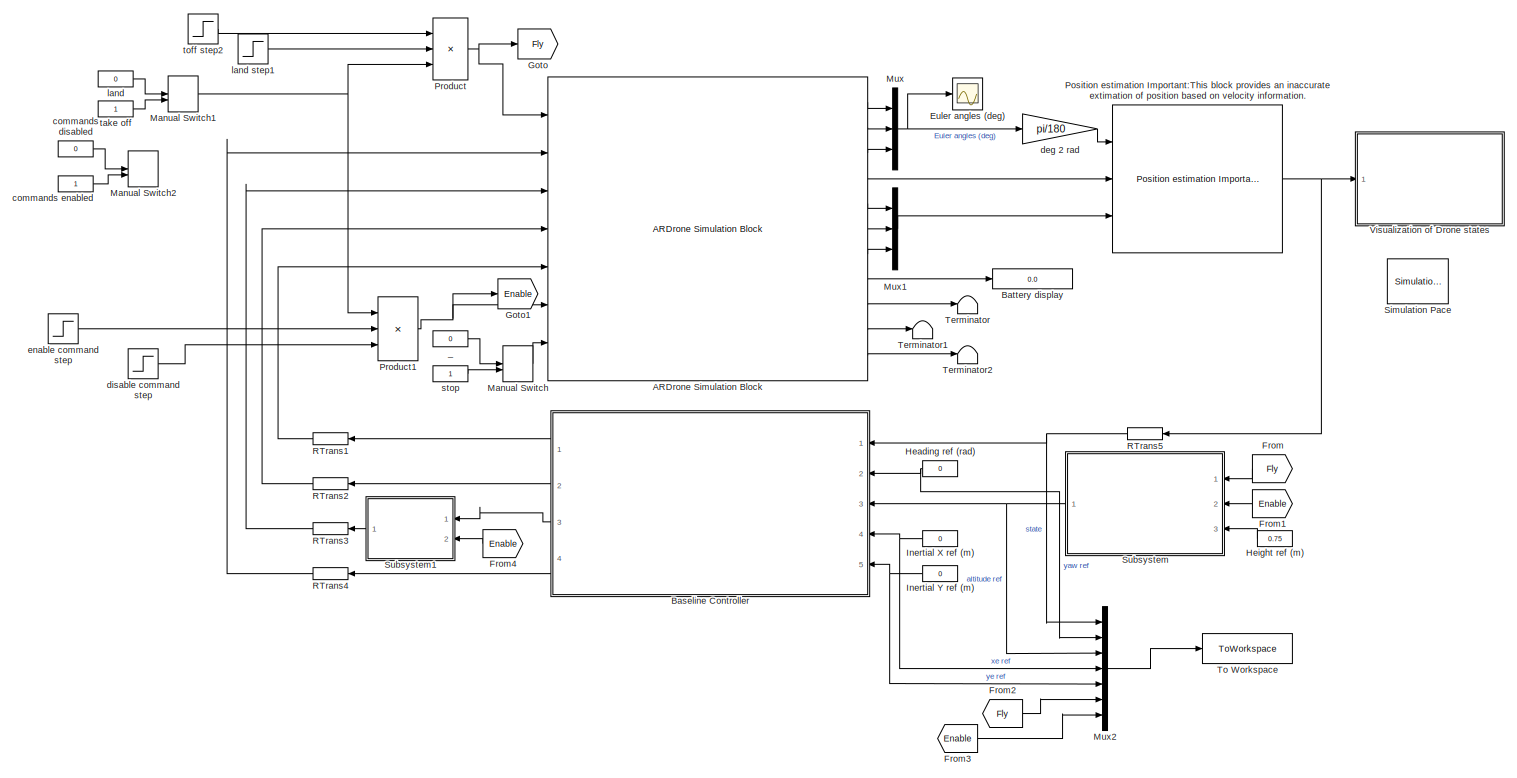
[diagram: root canvas - part 1/1, most of the canvas]
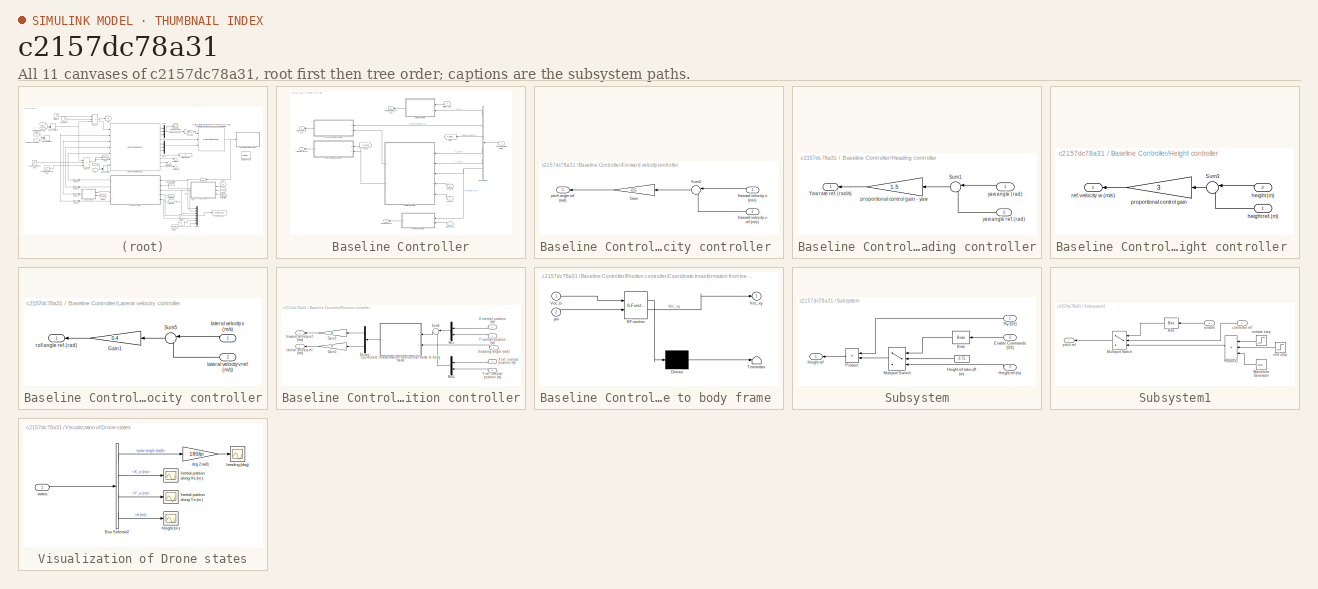
[diagram: thumbnail index - all 11 canvases of the model, root first then tree order]
MODEL slx_c2157dc78a31
KIND model
CONFIG AbsTol = auto
CONFIG EnableMultiTasking = on
CONFIG FixedStep = simDT
CONFIG MaxStep = auto
CONFIG MinStep = auto
CONFIG RelTol = 1e-3
CONFIG SampleTimeConstraint = Unconstrained
CONFIG Solver = ode1
CONFIG SolverName = ode1
CONFIG StartTime = 0.0
CONFIG StopTime = 100
BLOCK [Reference] ARDrone Simulation Block  REF=ARBlocks/ARDrone Simulation Block
  Ports = [7, 11]
  SourceBlock = ARBlocks/ARDrone Simulation Block
  SourceType = SubSystem
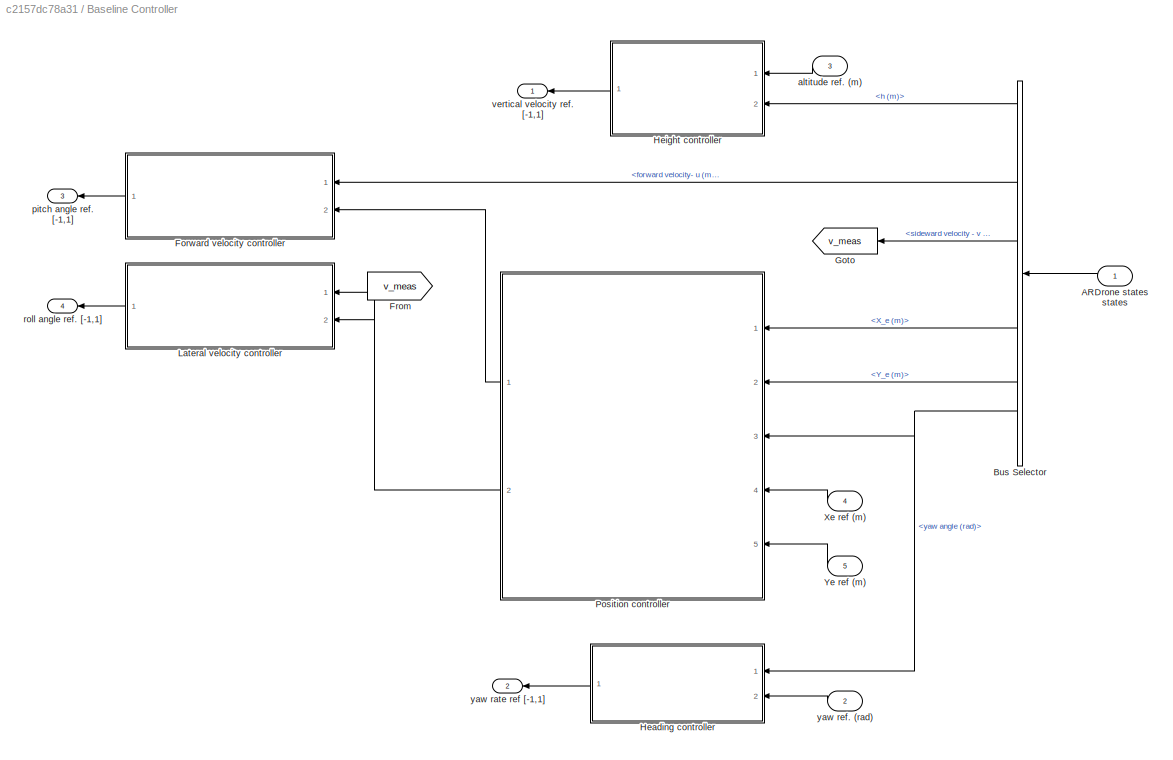
BLOCK [SubSystem] Baseline Controller
  AncestorBlock = ARBlocks/Baseline Controller
  Ports = [5, 4]
  RequestExecContextInheritance = off
BLOCK [Inport] Baseline Controller/ARDrone states  states 
BLOCK [BusSelector] Baseline Controller/Bus Selector
  NameLocation = top
  OutputSignals = h (m),forward velocity- u (m/s),sideward velocity - v (m/s),X_e (m),Y_e (m),yaw angle (rad)
  Ports = [1, 6]
BLOCK [SubSystem] Baseline Controller/Forward velocity controller 
  NameLocation = top
  Ports = [2, 1]
  RequestExecContextInheritance = off
BLOCK [Gain] Baseline Controller/Forward velocity controller /Gain
  Gain = -0.5
  NameLocation = top
BLOCK [Sum] Baseline Controller/Forward velocity controller /Sum2
  Inputs = |-+
  NameLocation = top
  Ports = [2, 1]
BLOCK [Inport] Baseline Controller/Forward velocity controller /forward velocity u (m//s)
BLOCK [Inport] Baseline Controller/Forward velocity controller /forward velocity u ref (m//s)
  Port = 2
BLOCK [Outport] Baseline Controller/Forward velocity controller /pitch angle ref. (rad)
  VectorParamsAs1DForOutWhenUnconnected = off
BLOCK [From] Baseline Controller/From
  GotoTag = v_meas
  NameLocation = top
BLOCK [Goto] Baseline Controller/Goto
  GotoTag = v_meas
  NameLocation = top
BLOCK [SubSystem] Baseline Controller/Heading controller
  NameLocation = top
  Ports = [2, 1]
  RequestExecContextInheritance = off
BLOCK [Sum] Baseline Controller/Heading controller/Sum1
  Inputs = |-+
  NameLocation = top
  Ports = [2, 1]
BLOCK [Outport] Baseline Controller/Heading controller/Yaw rate ref. (rad//s)
  VectorParamsAs1DForOutWhenUnconnected = off
BLOCK [Gain] Baseline Controller/Heading controller/proportional control gain - yaw
  Gain = 1.5
  NameLocation = top
BLOCK [Inport] Baseline Controller/Heading controller/yaw angle (rad)
BLOCK [Inport] Baseline Controller/Heading controller/yaw angle ref. (rad)
  Port = 2
BLOCK [SubSystem] Baseline Controller/Height controller 
  NameLocation = top
  Ports = [2, 1]
  RequestExecContextInheritance = off
BLOCK [Sum] Baseline Controller/Height controller /Sum3
  Inputs = |-+
  NameLocation = top
  Ports = [2, 1]
BLOCK [Inport] Baseline Controller/Height controller /height (m)
  Port = 2
BLOCK [Inport] Baseline Controller/Height controller /height ref. (m)
BLOCK [Gain] Baseline Controller/Height controller /proportional control gain
  Gain = 3
  NameLocation = top
BLOCK [Outport] Baseline Controller/Height controller /ref. velocity w (m//s)
  VectorParamsAs1DForOutWhenUnconnected = off
BLOCK [SubSystem] Baseline Controller/Lateral velocity controller
  Ports = [2, 1]
  RequestExecContextInheritance = off
BLOCK [Gain] Baseline Controller/Lateral velocity controller/Gain1
  Gain = 0.4
  NameLocation = top
BLOCK [Sum] Baseline Controller/Lateral velocity controller/Sum5
  Inputs = |-+
  NameLocation = top
  Ports = [2, 1]
BLOCK [Inport] Baseline Controller/Lateral velocity controller/lateral velocity v (m//s)
BLOCK [Inport] Baseline Controller/Lateral velocity controller/lateral velocity v ref. (m//s)
  Port = 2
BLOCK [Outport] Baseline Controller/Lateral velocity controller/roll angle ref. (rad)
  VectorParamsAs1DForOutWhenUnconnected = off
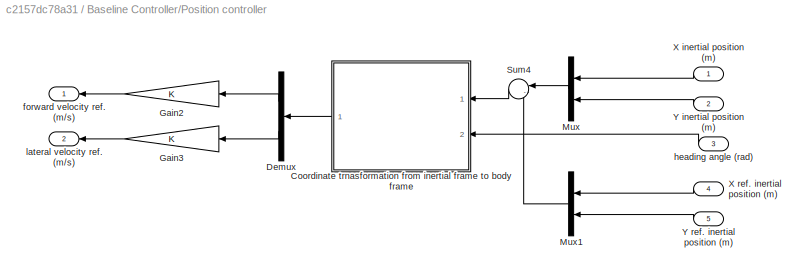
BLOCK [SubSystem] Baseline Controller/Position controller
  NameLocation = top
  Ports = [5, 2]
  RequestExecContextInheritance = off
BLOCK [SubSystem] Baseline Controller/Position controller/Coordinate trnasformation from inertial frame to body frame 
  ErrorFcn = Stateflow.Translate.translate
  NameLocation = top
  PermitHierarchicalResolution = ExplicitOnly
  Ports = [2, 1]
  RequestExecContextInheritance = off
  SFBlockType = MATLAB Function
  TreatAsAtomicUnit = on
BLOCK [Demux] Baseline Controller/Position controller/Coordinate trnasformation from inertial frame to body frame / Demux 
  Outputs = 1
  Ports = [1, 1]
BLOCK [S-Function] Baseline Controller/Position controller/Coordinate trnasformation from inertial frame to body frame / SFunction 
  EnableBusSupport = on
  FunctionName = sf_sfun
  PortCounts = [2 2]
  Ports = [2, 2]
  SFcnIsStateOwnerBlock = off
  SFunctionDeploymentMode = off
  Tag = Stateflow S-Function 7
BLOCK [Terminator] Baseline Controller/Position controller/Coordinate trnasformation from inertial frame to body frame / Terminator 
BLOCK [Inport] Baseline Controller/Position controller/Coordinate trnasformation from inertial frame to body frame /Vec_b
BLOCK [Outport] Baseline Controller/Position controller/Coordinate trnasformation from inertial frame to body frame /Vec_xy
  VectorParamsAs1DForOutWhenUnconnected = off
BLOCK [Inport] Baseline Controller/Position controller/Coordinate trnasformation from inertial frame to body frame /psi
  Port = 2
BLOCK [Demux] Baseline Controller/Position controller/Demux
  NameLocation = top
  Outputs = 2
  Ports = [1, 2]
BLOCK [Gain] Baseline Controller/Position controller/Gain2
  NameLocation = top
BLOCK [Gain] Baseline Controller/Position controller/Gain3
  NameLocation = top
BLOCK [Mux] Baseline Controller/Position controller/Mux
  DisplayOption = bar
  Inputs = 2
  NameLocation = top
  Ports = [2, 1]
BLOCK [Mux] Baseline Controller/Position controller/Mux1
  DisplayOption = bar
  Inputs = 2
  NameLocation = top
  Ports = [2, 1]
BLOCK [Sum] Baseline Controller/Position controller/Sum4
  Inputs = |-+
  NameLocation = top
  Ports = [2, 1]
BLOCK [Inport] Baseline Controller/Position controller/X inertial position (m)
BLOCK [Inport] Baseline Controller/Position controller/X ref. inertial position (m)
  Port = 4
BLOCK [Inport] Baseline Controller/Position controller/Y inertial position (m)
  Port = 2
BLOCK [Inport] Baseline Controller/Position controller/Y ref. inertial position (m)
  Port = 5
BLOCK [Outport] Baseline Controller/Position controller/forward velocity ref. (m//s)
  VectorParamsAs1DForOutWhenUnconnected = off
BLOCK [Inport] Baseline Controller/Position controller/heading angle (rad)
  Port = 3
BLOCK [Outport] Baseline Controller/Position controller/lateral velocity ref. (m//s)
  Port = 2
  VectorParamsAs1DForOutWhenUnconnected = off
BLOCK [Inport] Baseline Controller/Xe ref (m)
  Port = 4
BLOCK [Inport] Baseline Controller/Ye ref (m)
  Port = 5
BLOCK [Inport] Baseline Controller/altitude ref. (m)
  Port = 3
BLOCK [Outport] Baseline Controller/pitch angle ref. [-1,1]
  Port = 3
  VectorParamsAs1DForOutWhenUnconnected = off
BLOCK [Outport] Baseline Controller/roll angle ref. [-1,1]
  Port = 4
  VectorParamsAs1DForOutWhenUnconnected = off
BLOCK [Outport] Baseline Controller/vertical velocity ref. [-1,1]
  VectorParamsAs1DForOutWhenUnconnected = off
BLOCK [Outport] Baseline Controller/yaw rate ref [-1,1]
  Port = 2
  VectorParamsAs1DForOutWhenUnconnected = off
BLOCK [Inport] Baseline Controller/yaw ref. (rad)
  Port = 2
BLOCK [Display] Battery display
  Decimation = 1
  Ports = [1]
BLOCK [Scope] Euler angles (deg)
  Floating = off
  NumInputPorts = 1
  Ports = [1]
  ScopeSpecificationString = Simulink.scopes.TimeScopeBlockCfg('CurrentConfiguration', extmgr.ConfigurationSet(extmgr.Configuration('Core','General UI',true),extmgr.Configuration('Core','Source UI',true),extmgr.Configuration('Sources','WiredSimulink',true,'DataLoggingSaveFormat','StructureWithTime','DataLoggingMaxPoints','500000','DataLoggingLimitDataPoints',true,'DataLoggingDecimation','1','DataLoggingDecimateData',true),ext...<+1774ch>
BLOCK [From] From
  GotoTag = Fly
  NameLocation = top
BLOCK [From] From1
  GotoTag = Enable
  NameLocation = top
BLOCK [From] From2
  GotoTag = Fly
BLOCK [From] From3
  GotoTag = Enable
BLOCK [From] From4
  GotoTag = Enable
  NameLocation = top
BLOCK [Goto] Goto
  GotoTag = Fly
BLOCK [Goto] Goto1
  GotoTag = Enable
BLOCK [Constant] Heading ref (rad)
  NameLocation = top
  SampleTime = FMS.Ts
  Value = 0
BLOCK [Constant] Height ref (m)
  NameLocation = top
  SampleTime = FMS.Ts
  Value = 0.75
BLOCK [Constant] Inertial X ref (m)
  NameLocation = top
  SampleTime = FMS.Ts
  Value = 0
BLOCK [Constant] Inertial Y ref (m)
  NameLocation = top
  SampleTime = FMS.Ts
  Value = 0
BLOCK [ManualSwitch] Manual Switch
BLOCK [ManualSwitch] Manual Switch1
  CurrentSetting = 0
BLOCK [ManualSwitch] Manual Switch2
  CurrentSetting = 0
  NameLocation = top
BLOCK [Mux] Mux
  DisplayOption = bar
  Inputs = 3
  Ports = [3, 1]
BLOCK [Mux] Mux1
  DisplayOption = bar
  Inputs = 3
  Ports = [3, 1]
BLOCK [Mux] Mux2
  DisplayOption = bar
  Inputs = 7
  Ports = [7, 1]
BLOCK [Reference] Position estimation Important:This block provides an inaccurate extimation of position based on  velocity information.   REF=ARBlocks/Position estimation
Important:This block provides an 
inaccurate extimation of position 
based on  velocity information. 
  Ports = [3, 1]
  SourceBlock = ARBlocks/Position estimation\nImportant:This block provides an \ninaccurate extimation of position \nbased on  velocity information.
  SourceType = SubSystem
BLOCK [Product] Product
  Inputs = 3
  Ports = [3, 1]
BLOCK [Product] Product1
  Inputs = 3
  Ports = [3, 1]
BLOCK [RateTransition] RTrans1
  NameLocation = top
  OutPortSampleTime = simDT
BLOCK [RateTransition] RTrans2
  NameLocation = top
  OutPortSampleTime = simDT
BLOCK [RateTransition] RTrans3
  NameLocation = top
  OutPortSampleTime = simDT
BLOCK [RateTransition] RTrans4
  NameLocation = top
  OutPortSampleTime = simDT
BLOCK [RateTransition] RTrans5
  NameLocation = top
  OutPortSampleTime = FMS.Ts
BLOCK [Reference] Simulation Pace  REF=aerolibanimutils/Simulation Pace
  AttributesFormatString = %<SleepMode>\n%<SimulationPace> sec/sec
  Ports = []
  SourceBlock = aerolibanimutils/Simulation Pace
  SourceProductBaseCode = AE
  SourceType = Simulation Pace
BLOCK [SubSystem] Subsystem
  NameLocation = top
  Ports = [3, 1]
  RequestExecContextInheritance = off
BLOCK [Bias] Subsystem/Bias
  Bias = 1
  NameLocation = top
  SaturateOnIntegerOverflow = off
BLOCK [Inport] Subsystem/Enable Commands [0//1]
  Port = 2
BLOCK [Inport] Subsystem/Fly [0//1]
BLOCK [Outport] Subsystem/Height ref
  VectorParamsAs1DForOutWhenUnconnected = off
BLOCK [Inport] Subsystem/Height ref (m)
  Port = 3
BLOCK [Constant] Subsystem/Height ref take-off (m)
  NameLocation = top
  SampleTime = FMS.Ts
  Value = 0.75
BLOCK [MultiPortSwitch] Subsystem/Multiport Switch
  InputSameDT = off
  Inputs = 2
  NameLocation = top
  Ports = [3, 1]
  SaturateOnIntegerOverflow = off
BLOCK [Product] Subsystem/Product
  NameLocation = top
  Ports = [2, 1]
BLOCK [SubSystem] Subsystem1
  NameLocation = top
  Ports = [2, 1]
  RequestExecContextInheritance = off
BLOCK [Bias] Subsystem1/Bias
  Bias = 1
  NameLocation = top
  SaturateOnIntegerOverflow = off
BLOCK [MultiPortSwitch] Subsystem1/Multiport Switch
  InputSameDT = off
  Inputs = 2
  NameLocation = top
  Ports = [3, 1]
  SaturateOnIntegerOverflow = off
BLOCK [Product] Subsystem1/Product2
  Inputs = 3
  NameLocation = top
  Ports = [3, 1]
BLOCK [Reference] Subsystem1/Waveform Generator  REF=simulink/Sources/Waveform
Generator
  NameLocation = top
  Ports = [0, 1]
  SourceBlock = simulink/Sources/Waveform\nGenerator
  SourceProductBaseCode = SL
  SourceType = WaveformGenerator
BLOCK [Inport] Subsystem1/controller ref
BLOCK [Inport] Subsystem1/enable
  Port = 2
BLOCK [Step] Subsystem1/end step
  After = 0
  Before = 1
  NameLocation = top
  SampleTime = FMS.Ts
  Time = 30
BLOCK [Step] Subsystem1/initiate step
  NameLocation = top
  SampleTime = FMS.Ts
  Time = 20
BLOCK [Outport] Subsystem1/pitch ref
BLOCK [Terminator] Terminator
BLOCK [Terminator] Terminator1
BLOCK [Terminator] Terminator2
BLOCK [ToWorkspace] To Workspace
  FixptAsFi = on
  MaxDataPoints = inf
  Ports = [1]
  SampleTime = -1
  SaveFormat = Structure With Time
  VariableName = sim_data
BLOCK [SubSystem] Visualization of Drone states
  Ports = [1]
  RequestExecContextInheritance = off
BLOCK [BusSelector] Visualization of Drone states/Bus Selector2
  NameLocation = top
  OutputSignals = yaw angle (rad),X_e (m),Y_e (m),h (m)
  Ports = [1, 4]
BLOCK [Scope] Visualization of Drone states/Height (m)
  Floating = off
  NumInputPorts = 1
  Ports = [1]
  ScopeSpecificationString = Simulink.scopes.TimeScopeBlockCfg('CurrentConfiguration', extmgr.ConfigurationSet(extmgr.Configuration('Core','General UI',true),extmgr.Configuration('Core','Source UI',true),extmgr.Configuration('Sources','WiredSimulink',true,'DataLoggingVariableName','ScopeData5','DataLoggingSaveFormat','StructureWithTime','DataLoggingMaxPoints','500000','DataLoggingLimitDataPoints',true,'DataLoggingDecimation',...<+1758ch>
BLOCK [Scope] Visualization of Drone states/Inertial potition along Xe (m)
  Floating = off
  NumInputPorts = 1
  Ports = [1]
  ScopeSpecificationString = Simulink.scopes.TimeScopeBlockCfg('CurrentConfiguration', extmgr.ConfigurationSet(extmgr.Configuration('Core','General UI',true),extmgr.Configuration('Core','Source UI',true),extmgr.Configuration('Sources','WiredSimulink',true,'DataLoggingVariableName','ScopeData3','DataLoggingSaveFormat','StructureWithTime','DataLoggingMaxPoints','500000','DataLoggingLimitDataPoints',true,'DataLoggingDecimation',...<+1698ch>
BLOCK [Scope] Visualization of Drone states/Inertial potition along Ye (m)
  Floating = off
  NumInputPorts = 1
  Ports = [1]
  ScopeSpecificationString = Simulink.scopes.TimeScopeBlockCfg('CurrentConfiguration', extmgr.ConfigurationSet(extmgr.Configuration('Core','General UI',true),extmgr.Configuration('Core','Source UI',true),extmgr.Configuration('Sources','WiredSimulink',true,'DataLoggingVariableName','ScopeData4','DataLoggingSaveFormat','StructureWithTime','DataLoggingMaxPoints','500000','DataLoggingLimitDataPoints',true,'DataLoggingDecimation',...<+1699ch>
BLOCK [Gain] Visualization of Drone states/deg 2 rad1
  Gain = 180/pi
BLOCK [Scope] Visualization of Drone states/heading (deg)
  Floating = off
  NumInputPorts = 1
  Ports = [1]
  ScopeSpecificationString = Simulink.scopes.TimeScopeBlockCfg('CurrentConfiguration', extmgr.ConfigurationSet(extmgr.Configuration('Core','General UI',true),extmgr.Configuration('Core','Source UI',true),extmgr.Configuration('Sources','WiredSimulink',true,'DataLoggingVariableName','ScopeData2','DataLoggingSaveFormat','StructureWithTime','DataLoggingMaxPoints','500000','DataLoggingLimitDataPoints',true,'DataLoggingDecimation',...<+1772ch>
BLOCK [Inport] Visualization of Drone states/states
BLOCK [Constant] _
  Value = 0
BLOCK [Constant] commands disabled
  Value = 0
BLOCK [Constant] commands enabled
BLOCK [Gain] deg 2 rad
  Gain = pi/180
BLOCK [Step] disable command step
  After = 0
  Before = 1
  SampleTime = FMS.Ts
  Time = 60
BLOCK [Step] enable command step
  SampleTime = FMS.Ts
  Time = 15
BLOCK [Constant] land
  Value = 0
BLOCK [Step] land step1
  After = 0
  Before = 1
  SampleTime = FMS.Ts
  Time = 65
BLOCK [Constant] stop
BLOCK [Constant] take off
BLOCK [Step] toff step2
  SampleTime = FMS.Ts
  Time = 2
LINE ARDrone Simulation Block:1 -> Mux:1
LINE ARDrone Simulation Block:10 -> Terminator1:1
LINE ARDrone Simulation Block:11 -> Terminator2:1
LINE ARDrone Simulation Block:2 -> Mux:2
LINE ARDrone Simulation Block:3 -> Mux:3
LINE ARDrone Simulation Block:4 -> Position estimation Important:This block provides an inaccurate extimation of position based on  velocity information. :2
LINE ARDrone Simulation Block:5 -> Mux1:1
LINE ARDrone Simulation Block:6 -> Mux1:2
LINE ARDrone Simulation Block:7 -> Mux1:3
LINE ARDrone Simulation Block:8 -> Battery display:1
LINE ARDrone Simulation Block:9 -> Terminator:1
LINE Baseline Controller:1 -> RTrans1:1
LINE Baseline Controller:2 -> RTrans2:1
LINE Baseline Controller:3 -> Subsystem1:1
LINE Baseline Controller:4 -> RTrans4:1
LINE From1:1 -> Subsystem:2
LINE From2:1 -> Mux2:6
LINE From3:1 -> Mux2:7
LINE From4:1 -> Subsystem1:2
LINE From:1 -> Subsystem:1
NET Heading ref (rad):1 -> Baseline Controller:2, Mux2:2
LINE Height ref (m):1 -> Subsystem:3
NET Inertial X ref (m):1 -> Baseline Controller:4, Mux2:4
NET Inertial Y ref (m):1 -> Baseline Controller:5, Mux2:5
NET Manual Switch1:1 -> Product1:1, Product:3
LINE Manual Switch:1 -> ARDrone Simulation Block:7
LINE Mux1:1 -> Position estimation Important:This block provides an inaccurate extimation of position based on  velocity information. :3
LINE Mux2:1 -> To Workspace:1
NET Mux:1 -> Euler angles (deg):1, deg 2 rad:1
NET Position estimation Important:This block provides an inaccurate extimation of position based on  velocity information. :1 -> RTrans5:1, Visualization of Drone states:1
NET Product1:1 -> ARDrone Simulation Block:6, Goto1:1
NET Product:1 -> ARDrone Simulation Block:1, Goto:1
LINE RTrans1:1 -> ARDrone Simulation Block:5
LINE RTrans2:1 -> ARDrone Simulation Block:4
LINE RTrans3:1 -> ARDrone Simulation Block:3
LINE RTrans4:1 -> ARDrone Simulation Block:2
NET RTrans5:1 -> Baseline Controller:1, Mux2:1
LINE Subsystem/Bias:1 -> Subsystem/Multiport Switch:1
LINE Subsystem/Enable Commands [0//1]:1 -> Subsystem/Bias:1
LINE Subsystem/Fly [0//1]:1 -> Subsystem/Product:1
LINE Subsystem/Height ref (m):1 -> Subsystem/Multiport Switch:3
LINE Subsystem/Height ref take-off (m):1 -> Subsystem/Multiport Switch:2
LINE Subsystem/Multiport Switch:1 -> Subsystem/Product:2
LINE Subsystem/Product:1 -> Subsystem/Height ref:1
LINE Subsystem1/Bias:1 -> Subsystem1/Multiport Switch:1
LINE Subsystem1/Multiport Switch:1 -> Subsystem1/pitch ref:1
LINE Subsystem1/Product2:1 -> Subsystem1/Multiport Switch:3
LINE Subsystem1/Waveform Generator:1 -> Subsystem1/Product2:3
LINE Subsystem1/controller ref:1 -> Subsystem1/Multiport Switch:2
LINE Subsystem1/enable:1 -> Subsystem1/Bias:1
LINE Subsystem1/end step:1 -> Subsystem1/Product2:2
LINE Subsystem1/initiate step:1 -> Subsystem1/Product2:1
LINE Subsystem1:1 -> RTrans3:1
NET Subsystem:1 -> Baseline Controller:3, Mux2:3
LINE Visualization of Drone states/Bus Selector2:1 -> Visualization of Drone states/deg 2 rad1:1
LINE Visualization of Drone states/Bus Selector2:2 -> Visualization of Drone states/Inertial potition along Xe (m):1
LINE Visualization of Drone states/Bus Selector2:3 -> Visualization of Drone states/Inertial potition along Ye (m):1
LINE Visualization of Drone states/Bus Selector2:4 -> Visualization of Drone states/Height (m):1
LINE Visualization of Drone states/deg 2 rad1:1 -> Visualization of Drone states/heading (deg):1
LINE Visualization of Drone states/states:1 -> Visualization of Drone states/Bus Selector2:1
LINE _:1 -> Manual Switch:1
LINE commands disabled:1 -> Manual Switch2:1
LINE commands enabled:1 -> Manual Switch2:2
LINE deg 2 rad:1 -> Position estimation Important:This block provides an inaccurate extimation of position based on  velocity information. :1
LINE disable command step:1 -> Product1:3
LINE enable command step:1 -> Product1:2
LINE land step1:1 -> Product:2
LINE land:1 -> Manual Switch1:1
LINE stop:1 -> Manual Switch:2
LINE take off:1 -> Manual Switch1:2
LINE toff step2:1 -> Product:1
note: NET lines group one-source signal fan-out (src -> all destinations, sorted); 1:1 wires keep LINE
CHART Baseline Controller/Position controller/Coordinate trnasformation 
from inertial frame to body frame  states=1 transitions=1
  STATE_LABEL 'eML_blk_kernel()'
  STATE_LABEL 'SCRIPT:\nfunction Vec_xy  = fcn(Vec_b , psi)\n%#codegen\nT = [cos(psi) sin(psi) ; -sin(psi) cos(psi)] ; \nVec_xy = T*Vec_b(1:2,1); \n\n'
CHART  states=0 transitions=0
